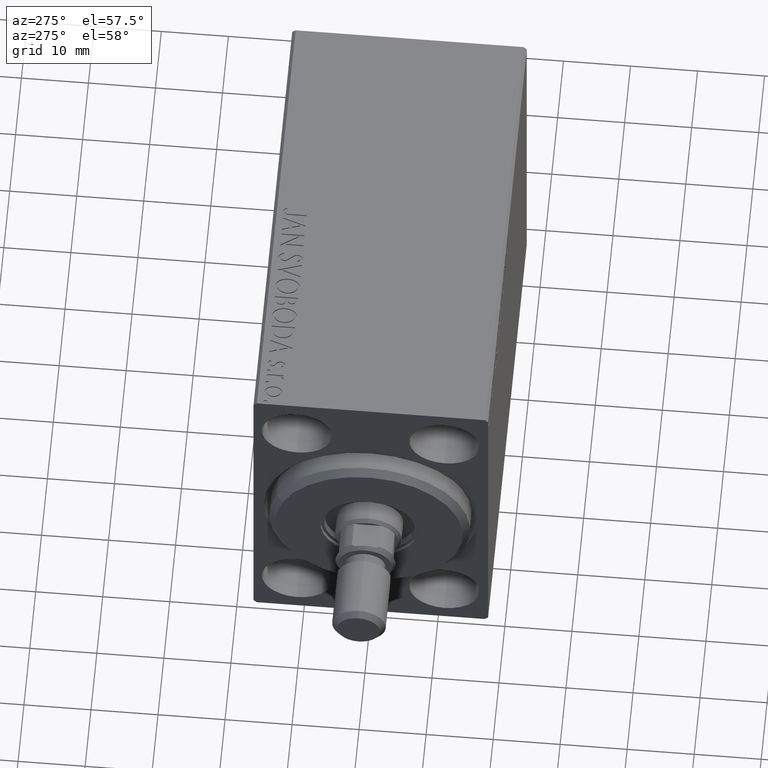
[diagram: clean part render]
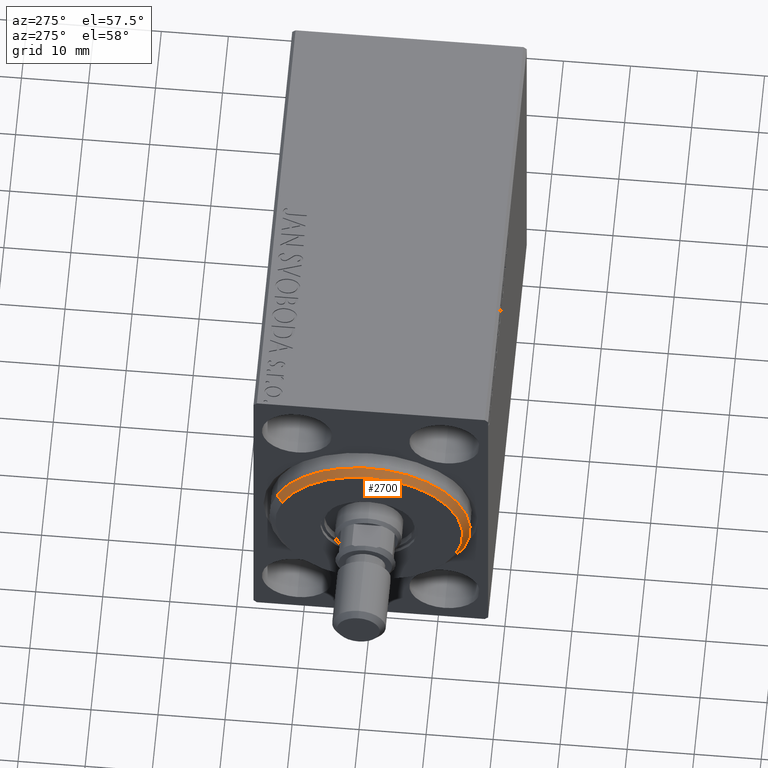
[diagram: same view with one face highlighted and labeled with its STEP entity id]
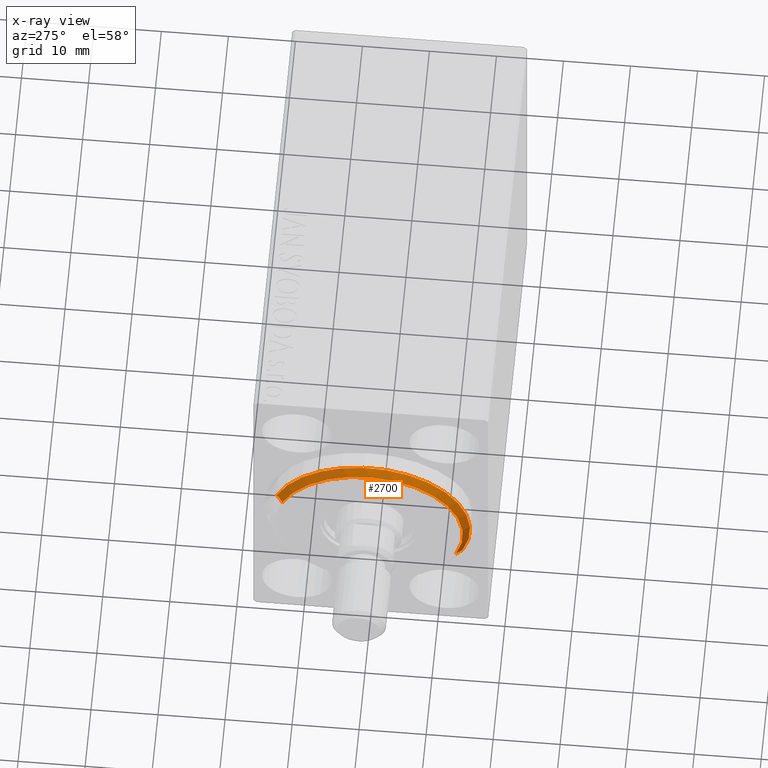
[diagram: x-ray of the same camera — body ghosted, the highlighted face saturated]
A machine part, auxiliary view. The second image highlights one B-rep face of the part: STEP entity #2700.
The next image is the same camera in x-ray: the body ghosted, the highlighted face saturated — about 0% of this face is hidden behind the body in this view.
In plain terms, the highlighted conical surface has half-angle 45 deg.
Its self-contained STEP definition (entity closure, byte-faithful):
#272 = ORIENTED_EDGE ( 'NONE', *, *, #8982, .T. ) ;
#500 = CARTESIAN_POINT ( 'NONE',  ( 3.000000000000000000, 0.000000000000000000, 13.99999999999999645 ) ) ;
#666 = DIRECTION ( 'NONE',  ( 0.000000000000000000, 0.000000000000000000, -1.000000000000000000 ) ) ;
#841 = EDGE_CURVE ( 'NONE', #6091, #17625, #5582, .T. ) ;
#1009 = VERTEX_POINT ( 'NONE', #24834 ) ;
#1493 = CIRCLE ( 'NONE', #38718, 13.99999999999999645 ) ;
#2410 = VERTEX_POINT ( 'NONE', #32552 ) ;
#2700 = ADVANCED_FACE ( 'NONE', ( #29578 ), #29753, .T. ) ;
#4635 = CARTESIAN_POINT ( 'NONE',  ( 3.000000000000000000, 1.775737858763662015E-15, -13.99999999999999645 ) ) ;
#5144 = EDGE_CURVE ( 'NONE', #17625, #2410, #31980, .T. ) ;
#5582 = LINE ( 'NONE', #39433, #39042 ) ;
#6091 = VERTEX_POINT ( 'NONE', #4635 ) ;
#6265 = DIRECTION ( 'NONE',  ( 0.000000000000000000, 0.000000000000000000, 1.000000000000000000 ) ) ;
#8982 = EDGE_CURVE ( 'NONE', #1009, #2410, #11688, .T. ) ;
#9162 = ORIENTED_EDGE ( 'NONE', *, *, #17061, .F. ) ;
#11688 = LINE ( 'NONE', #500, #42176 ) ;
#11908 = DIRECTION ( 'NONE',  ( -1.000000000000000000, 0.000000000000000000, 0.000000000000000000 ) ) ;
#17061 = EDGE_CURVE ( 'NONE', #1009, #6091, #1493, .T. ) ;
#17216 = CARTESIAN_POINT ( 'NONE',  ( 1.999999999999995781, 1.836970198721029589E-15, -15.00000000000000000 ) ) ;
#17625 = VERTEX_POINT ( 'NONE', #17216 ) ;
#17992 = DIRECTION ( 'NONE',  ( -0.7071067811865482389, 0.000000000000000000, 0.7071067811865469066 ) ) ;
#20535 = AXIS2_PLACEMENT_3D ( 'NONE', #28710, #11908, #39256 ) ;
#20636 = CARTESIAN_POINT ( 'NONE',  ( 3.000000000000000000, 0.000000000000000000, 0.000000000000000000 ) ) ;
#24834 = CARTESIAN_POINT ( 'NONE',  ( 3.000000000000000000, 0.000000000000000000, 13.99999999999999645 ) ) ;
#26141 = ORIENTED_EDGE ( 'NONE', *, *, #5144, .F. ) ;
#28646 = EDGE_LOOP ( 'NONE', ( #37387, #9162, #272, #26141 ) ) ;
#28710 = CARTESIAN_POINT ( 'NONE',  ( 1.999999999999995781, 0.000000000000000000, 0.000000000000000000 ) ) ;
#29559 = DIRECTION ( 'NONE',  ( -0.7071067811865482389, 8.659560562354926695E-17, -0.7071067811865469066 ) ) ;
#29578 = FACE_OUTER_BOUND ( 'NONE', #28646, .T. ) ;
#29753 = CONICAL_SURFACE ( 'NONE', #34078, 13.99999999999999645, 0.7853981633974473908 ) ;
#31387 = DIRECTION ( 'NONE',  ( 1.000000000000000000, -0.000000000000000000, 0.000000000000000000 ) ) ;
#31980 = CIRCLE ( 'NONE', #20535, 15.00000000000000000 ) ;
#32552 = CARTESIAN_POINT ( 'NONE',  ( 1.999999999999995781, 0.000000000000000000, 15.00000000000000000 ) ) ;
#34078 = AXIS2_PLACEMENT_3D ( 'NONE', #36743, #43051, #6265 ) ;
#36743 = CARTESIAN_POINT ( 'NONE',  ( 3.000000000000000000, 0.000000000000000000, 0.000000000000000000 ) ) ;
#37387 = ORIENTED_EDGE ( 'NONE', *, *, #841, .F. ) ;
#38718 = AXIS2_PLACEMENT_3D ( 'NONE', #20636, #31387, #666 ) ;
#39042 = VECTOR ( 'NONE', #29559, 999.9999999999998863 ) ;
#39256 = DIRECTION ( 'NONE',  ( 0.000000000000000000, 0.000000000000000000, -1.000000000000000000 ) ) ;
#39433 = CARTESIAN_POINT ( 'NONE',  ( 3.000000000000000000, 1.714505518806294244E-15, -13.99999999999999645 ) ) ;
#42176 = VECTOR ( 'NONE', #17992, 999.9999999999998863 ) ;
#43051 = DIRECTION ( 'NONE',  ( -1.000000000000000000, 0.000000000000000000, 0.000000000000000000 ) ) ;